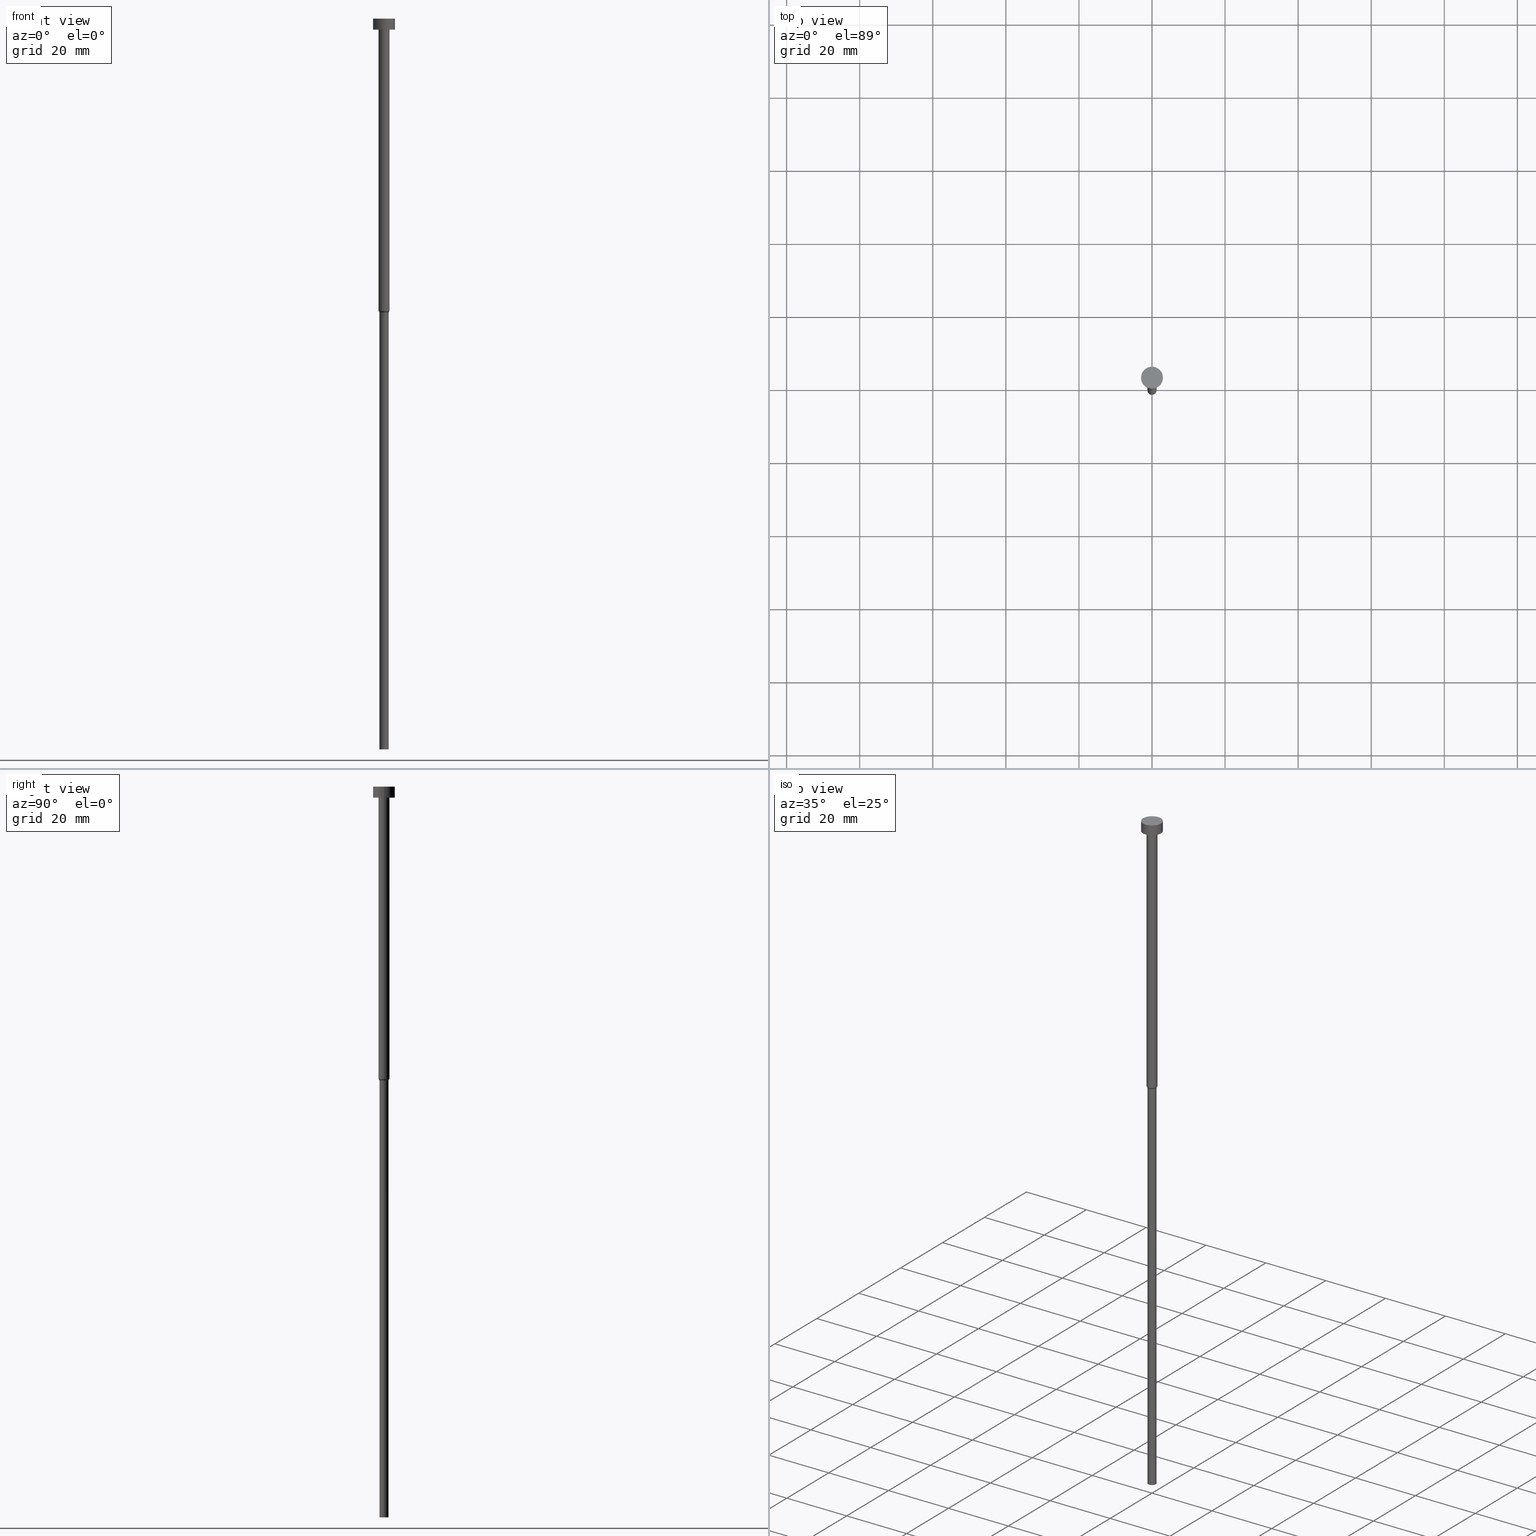
[diagram: canonical four-view strip — front | top / right | iso, engineering-drawing reading convention]
A machine part, canonical four-view strip (front | top / right | iso — engineering-drawing reading convention). The complete STEP part file that produces these views, byte-faithful:
ISO-10303-21;
HEADER;
FILE_DESCRIPTION (( 'STEP AP203' ),
    '1' );
FILE_NAME ('53ff.STEP',
    '2023-02-13T09:02:29',
    ( '' ),
    ( '' ),
    'SwSTEP 2.0',
    'SolidWorks 2019',
    '' );
FILE_SCHEMA (( 'CONFIG_CONTROL_DESIGN' ));
ENDSEC;

DATA;
#1 = CARTESIAN_POINT ( 'NONE',  ( 1.500000000000000000, 0.000000000000000000, -3.000000000000000888 ) ) ;
#2 = APPROVAL_STATUS ( 'not_yet_approved' ) ;
#3 = CARTESIAN_POINT ( 'NONE',  ( 0.000000000000000000, 0.000000000000000000, -80.00000000000000000 ) ) ;
#4 = DIRECTION ( 'NONE',  ( 1.000000000000000000, 0.000000000000000000, 0.000000000000000000 ) ) ;
#5 = APPLICATION_PROTOCOL_DEFINITION ( 'international standard', 'config_control_design', 1994, #165 ) ;
#6 = CYLINDRICAL_SURFACE ( 'NONE', #319, 3.000000000000000000 ) ;
#7 = EDGE_CURVE ( 'NONE', #173, #255, #65, .T. ) ;
#8 = CIRCLE ( 'NONE', #336, 1.500000000000000000 ) ;
#9 = ORIENTED_EDGE ( 'NONE', *, *, #151, .F. ) ;
#10 = ADVANCED_FACE ( 'NONE', ( #184 ), #182, .T. ) ;
#11 = DIRECTION ( 'NONE',  ( -1.000000000000000000, 0.000000000000000000, -0.000000000000000000 ) ) ;
#12 = DIRECTION ( 'NONE',  ( -0.000000000000000000, -0.000000000000000000, 1.000000000000000000 ) ) ;
#13 = AXIS2_PLACEMENT_3D ( 'NONE', #164, #329, #224 ) ;
#14 = DIRECTION ( 'NONE',  ( -0.4999999999999981681, 6.123233995736742617E-17, 0.8660254037844395958 ) ) ;
#15 = DIRECTION ( 'NONE',  ( 0.4999999999999981681, 0.000000000000000000, 0.8660254037844395958 ) ) ;
#16 = EDGE_CURVE ( 'NONE', #157, #173, #83, .T. ) ;
#17 = ORIENTED_EDGE ( 'NONE', *, *, #16, .F. ) ;
#18 = AXIS2_PLACEMENT_3D ( 'NONE', #220, #323, #106 ) ;
#19 = CARTESIAN_POINT ( 'NONE',  ( -1.500000000000000000, 1.836970198721029934E-16, -80.00000000000000000 ) ) ;
#20 = CARTESIAN_POINT ( 'NONE',  ( -1.250000000000000000, 1.530808498934191571E-16, -80.43301270189222407 ) ) ;
#21 = PERSON_AND_ORGANIZATION ( #177, #196 ) ;
#22 = CARTESIAN_POINT ( 'NONE',  ( 0.000000000000000000, 0.000000000000000000, -200.0000000000000000 ) ) ;
#23 = DATE_AND_TIME ( #193, #214 ) ;
#24 = AXIS2_PLACEMENT_3D ( 'NONE', #332, #201, #32 ) ;
#25 = DIRECTION ( 'NONE',  ( -0.000000000000000000, -0.000000000000000000, 1.000000000000000000 ) ) ;
#26 = COORDINATED_UNIVERSAL_TIME_OFFSET ( 1, 0, .AHEAD. ) ;
#27 = CONICAL_SURFACE ( 'NONE', #158, 1.500000000000000000, 0.5235987755982968173 ) ;
#28 = FACE_OUTER_BOUND ( 'NONE', #72, .T. ) ;
#29 = DESIGN_CONTEXT ( 'detailed design', #80, 'design' ) ;
#30 = EDGE_CURVE ( 'NONE', #61, #312, #289, .T. ) ;
#31 = DIRECTION ( 'NONE',  ( -1.000000000000000000, 0.000000000000000000, -0.000000000000000000 ) ) ;
#32 = DIRECTION ( 'NONE',  ( 1.000000000000000000, 0.000000000000000000, 0.000000000000000000 ) ) ;
#33 = ORIENTED_EDGE ( 'NONE', *, *, #347, .T. ) ;
#34 = APPROVAL_STATUS ( 'not_yet_approved' ) ;
#35 = CC_DESIGN_PERSON_AND_ORGANIZATION_ASSIGNMENT ( #218, #228, ( #345 ) ) ;
#36 = DATE_AND_TIME ( #113, #341 ) ;
#37 = EDGE_LOOP ( 'NONE', ( #339, #213, #17, #115 ) ) ;
#38 = PRODUCT_RELATED_PRODUCT_CATEGORY ( 'detail', '', ( #345 ) ) ;
#39 = DIRECTION ( 'NONE',  ( -0.000000000000000000, -0.000000000000000000, 1.000000000000000000 ) ) ;
#40 = ORIENTED_EDGE ( 'NONE', *, *, #64, .F. ) ;
#41 = DIRECTION ( 'NONE',  ( 1.000000000000000000, 0.000000000000000000, 0.000000000000000000 ) ) ;
#42 = ORIENTED_EDGE ( 'NONE', *, *, #286, .F. ) ;
#43 = CARTESIAN_POINT ( 'NONE',  ( 0.000000000000000000, 0.000000000000000000, -3.000000000000000888 ) ) ;
#44 = CARTESIAN_POINT ( 'NONE',  ( 3.000000000000000000, 0.000000000000000000, 0.000000000000000000 ) ) ;
#45 = ORIENTED_EDGE ( 'NONE', *, *, #96, .T. ) ;
#46 = VECTOR ( 'NONE', #138, 1000.000000000000000 ) ;
#47 = CARTESIAN_POINT ( 'NONE',  ( 0.000000000000000000, 0.000000000000000000, -3.673940397442059868E-16 ) ) ;
#48 = CYLINDRICAL_SURFACE ( 'NONE', #302, 1.250000000000000000 ) ;
#49 = DIRECTION ( 'NONE',  ( 1.000000000000000000, 0.000000000000000000, 0.000000000000000000 ) ) ;
#50 = CARTESIAN_POINT ( 'NONE',  ( -1.250000000000000000, 1.530808498934191571E-16, 0.000000000000000000 ) ) ;
#51 = AXIS2_PLACEMENT_3D ( 'NONE', #73, #69, #100 ) ;
#52 = FACE_OUTER_BOUND ( 'NONE', #238, .T. ) ;
#53 =( NAMED_UNIT ( * ) SI_UNIT ( $, .STERADIAN. ) SOLID_ANGLE_UNIT ( ) );
#54 = CC_DESIGN_SECURITY_CLASSIFICATION ( #141, ( #265 ) ) ;
#55 = DIRECTION ( 'NONE',  ( -0.000000000000000000, -0.000000000000000000, 1.000000000000000000 ) ) ;
#56 = PERSON_AND_ORGANIZATION_ROLE ( 'creator' ) ;
#57 = DIRECTION ( 'NONE',  ( 1.000000000000000000, 0.000000000000000000, 0.000000000000000000 ) ) ;
#58 = ORIENTED_EDGE ( 'NONE', *, *, #96, .F. ) ;
#59 = EDGE_CURVE ( 'NONE', #147, #236, #66, .T. ) ;
#60 = VERTEX_POINT ( 'NONE', #150 ) ;
#61 = VERTEX_POINT ( 'NONE', #128 ) ;
#62 = VERTEX_POINT ( 'NONE', #314 ) ;
#63 = AXIS2_PLACEMENT_3D ( 'NONE', #301, #252, #4 ) ;
#64 = EDGE_CURVE ( 'NONE', #255, #62, #260, .T. ) ;
#65 = LINE ( 'NONE', #19, #257 ) ;
#66 = LINE ( 'NONE', #44, #70 ) ;
#67 = CC_DESIGN_DATE_AND_TIME_ASSIGNMENT ( #36, #281, ( #141 ) ) ;
#68 = ORIENTED_EDGE ( 'NONE', *, *, #30, .T. ) ;
#69 = DIRECTION ( 'NONE',  ( -0.000000000000000000, -0.000000000000000000, 1.000000000000000000 ) ) ;
#70 = VECTOR ( 'NONE', #240, 1000.000000000000000 ) ;
#71 = LINE ( 'NONE', #285, #116 ) ;
#72 = EDGE_LOOP ( 'NONE', ( #258, #320, #149, #58 ) ) ;
#73 = CARTESIAN_POINT ( 'NONE',  ( 0.000000000000000000, 0.000000000000000000, -3.673940397442059868E-16 ) ) ;
#74 = CARTESIAN_POINT ( 'NONE',  ( 0.000000000000000000, 0.000000000000000000, -3.000000000000000888 ) ) ;
#75 = DIRECTION ( 'NONE',  ( -0.000000000000000000, -0.000000000000000000, 1.000000000000000000 ) ) ;
#76 = APPROVAL_ROLE ( '' ) ;
#77 = FACE_OUTER_BOUND ( 'NONE', #37, .T. ) ;
#78 = CALENDAR_DATE ( 2023, 13, 2 ) ;
#79 = DIRECTION ( 'NONE',  ( 0.000000000000000000, -0.000000000000000000, 1.000000000000000000 ) ) ;
#80 = APPLICATION_CONTEXT ( 'configuration controlled 3d designs of mechanical parts and assemblies' ) ;
#81 = APPROVAL_PERSON_ORGANIZATION ( #199, #162, #304 ) ;
#82 = DIRECTION ( 'NONE',  ( -0.000000000000000000, -0.000000000000000000, 1.000000000000000000 ) ) ;
#83 = CIRCLE ( 'NONE', #245, 1.250000000000000000 ) ;
#84 = CARTESIAN_POINT ( 'NONE',  ( -1.250000000000000000, 1.530808498934191571E-16, -200.0000000000000000 ) ) ;
#85 = EDGE_LOOP ( 'NONE', ( #235, #68, #186, #311 ) ) ;
#86 = EDGE_CURVE ( 'NONE', #255, #60, #307, .T. ) ;
#87 = VECTOR ( 'NONE', #82, 1000.000000000000000 ) ;
#88 = SECURITY_CLASSIFICATION_LEVEL ( 'unclassified' ) ;
#89 = COORDINATED_UNIVERSAL_TIME_OFFSET ( 1, 0, .AHEAD. ) ;
#90 = ORIENTED_EDGE ( 'NONE', *, *, #282, .F. ) ;
#91 = COORDINATED_UNIVERSAL_TIME_OFFSET ( 1, 0, .AHEAD. ) ;
#92 = APPROVAL ( #249, 'NEUR�EN�' ) ;
#93 = EDGE_LOOP ( 'NONE', ( #9, #178, #33, #340 ) ) ;
#94 = AXIS2_PLACEMENT_3D ( 'NONE', #105, #130, #49 ) ;
#95 = EDGE_LOOP ( 'NONE', ( #279, #119, #231, #42 ) ) ;
#96 = EDGE_CURVE ( 'NONE', #157, #60, #71, .T. ) ;
#97 = FACE_OUTER_BOUND ( 'NONE', #204, .T. ) ;
#98 = CARTESIAN_POINT ( 'NONE',  ( 1.250000000000000000, 0.000000000000000000, 0.000000000000000000 ) ) ;
#99 = CARTESIAN_POINT ( 'NONE',  ( 0.000000000000000000, -3.000000000000000000, -3.000000000000000888 ) ) ;
#100 = DIRECTION ( 'NONE',  ( 1.000000000000000000, 0.000000000000000000, 0.000000000000000000 ) ) ;
#101 = CLOSED_SHELL ( 'NONE', ( #232, #259, #272, #208, #143, #200, #237, #10, #127, #321, #241 ) ) ;
#102 = ORIENTED_EDGE ( 'NONE', *, *, #86, .T. ) ;
#103 = CARTESIAN_POINT ( 'NONE',  ( 3.000000000000000000, 0.000000000000000000, -3.000000000000000888 ) ) ;
#104 = CC_DESIGN_PERSON_AND_ORGANIZATION_ASSIGNMENT ( #175, #278, ( #141 ) ) ;
#105 = CARTESIAN_POINT ( 'NONE',  ( 0.000000000000000000, 0.000000000000000000, 0.000000000000000000 ) ) ;
#106 = DIRECTION ( 'NONE',  ( 1.000000000000000000, 0.000000000000000000, 0.000000000000000000 ) ) ;
#107 = PERSON_AND_ORGANIZATION ( #177, #196 ) ;
#108 = DIRECTION ( 'NONE',  ( -0.000000000000000000, -0.000000000000000000, 1.000000000000000000 ) ) ;
#109 = UNCERTAINTY_MEASURE_WITH_UNIT (LENGTH_MEASURE( 1.000000000000000082E-05 ), #293, 'distance_accuracy_value', 'NONE');
#110 = LINE ( 'NONE', #226, #87 ) ;
#111 = DIRECTION ( 'NONE',  ( -0.000000000000000000, -0.000000000000000000, 1.000000000000000000 ) ) ;
#112 = AXIS2_PLACEMENT_3D ( 'NONE', #99, #155, #11 ) ;
#113 = CALENDAR_DATE ( 2023, 13, 2 ) ;
#114 = APPROVAL_DATE_TIME ( #202, #262 ) ;
#115 = ORIENTED_EDGE ( 'NONE', *, *, #347, .F. ) ;
#116 = VECTOR ( 'NONE', #15, 1000.000000000000114 ) ;
#117 = APPROVAL_PERSON_ORGANIZATION ( #137, #92, #76 ) ;
#118 = CC_DESIGN_PERSON_AND_ORGANIZATION_ASSIGNMENT ( #251, #256, ( #265 ) ) ;
#119 = ORIENTED_EDGE ( 'NONE', *, *, #64, .T. ) ;
#120 = ORIENTED_EDGE ( 'NONE', *, *, #286, .T. ) ;
#121 = CC_DESIGN_PERSON_AND_ORGANIZATION_ASSIGNMENT ( #21, #56, ( #171 ) ) ;
#122 = AXIS2_PLACEMENT_3D ( 'NONE', #273, #79, #132 ) ;
#123 = DIRECTION ( 'NONE',  ( 1.000000000000000000, 0.000000000000000000, 0.000000000000000000 ) ) ;
#124 = FACE_BOUND ( 'NONE', #306, .T. ) ;
#125 = CARTESIAN_POINT ( 'NONE',  ( 0.000000000000000000, 0.000000000000000000, 0.000000000000000000 ) ) ;
#126 = LOCAL_TIME ( 10, 2, 29.00000000000000000, #26 ) ;
#127 = ADVANCED_FACE ( 'NONE', ( #124, #97 ), #346, .T. ) ;
#128 = CARTESIAN_POINT ( 'NONE',  ( -3.000000000000000000, 3.673940397442059868E-16, -3.000000000000000888 ) ) ;
#129 = FACE_OUTER_BOUND ( 'NONE', #85, .T. ) ;
#130 = DIRECTION ( 'NONE',  ( 0.000000000000000000, 0.000000000000000000, 1.000000000000000000 ) ) ;
#131 = MANIFOLD_SOLID_BREP ( 'Rotovat1', #101 ) ;
#132 = DIRECTION ( 'NONE',  ( 1.000000000000000000, 0.000000000000000000, 0.000000000000000000 ) ) ;
#133 = APPROVAL_DATE_TIME ( #23, #92 ) ;
#134 = VECTOR ( 'NONE', #39, 1000.000000000000000 ) ;
#135 = AXIS2_PLACEMENT_3D ( 'NONE', #125, #291, #123 ) ;
#136 = DIRECTION ( 'NONE',  ( -0.000000000000000000, -0.000000000000000000, 1.000000000000000000 ) ) ;
#137 = PERSON_AND_ORGANIZATION ( #177, #196 ) ;
#138 = DIRECTION ( 'NONE',  ( -0.000000000000000000, -0.000000000000000000, 1.000000000000000000 ) ) ;
#139 = FACE_OUTER_BOUND ( 'NONE', #95, .T. ) ;
#140 = CALENDAR_DATE ( 2023, 13, 2 ) ;
#141 = SECURITY_CLASSIFICATION ( '', '', #88 ) ;
#142 = FACE_OUTER_BOUND ( 'NONE', #209, .T. ) ;
#143 = ADVANCED_FACE ( 'NONE', ( #264 ), #349, .T. ) ;
#144 = CIRCLE ( 'NONE', #325, 1.500000000000000000 ) ;
#145 = ORIENTED_EDGE ( 'NONE', *, *, #7, .F. ) ;
#146 = ORIENTED_EDGE ( 'NONE', *, *, #221, .T. ) ;
#147 = VERTEX_POINT ( 'NONE', #103 ) ;
#148 =( GEOMETRIC_REPRESENTATION_CONTEXT ( 3 ) GLOBAL_UNCERTAINTY_ASSIGNED_CONTEXT ( ( #109 ) ) GLOBAL_UNIT_ASSIGNED_CONTEXT ( ( #293, #160, #53 ) ) REPRESENTATION_CONTEXT ( 'NONE', 'WORKASPACE' ) );
#149 = ORIENTED_EDGE ( 'NONE', *, *, #337, .F. ) ;
#150 = CARTESIAN_POINT ( 'NONE',  ( 1.500000000000000000, 0.000000000000000000, -80.00000000000000000 ) ) ;
#151 = EDGE_CURVE ( 'NONE', #316, #173, #248, .T. ) ;
#152 = ORIENTED_EDGE ( 'NONE', *, *, #355, .T. ) ;
#153 = DIRECTION ( 'NONE',  ( -0.000000000000000000, -0.000000000000000000, 1.000000000000000000 ) ) ;
#154 = ORIENTED_EDGE ( 'NONE', *, *, #294, .F. ) ;
#155 = DIRECTION ( 'NONE',  ( 0.000000000000000000, 0.000000000000000000, -1.000000000000000000 ) ) ;
#156 = EDGE_CURVE ( 'NONE', #263, #316, #180, .T. ) ;
#157 = VERTEX_POINT ( 'NONE', #161 ) ;
#158 = AXIS2_PLACEMENT_3D ( 'NONE', #3, #108, #328 ) ;
#159 = CARTESIAN_POINT ( 'NONE',  ( 3.000000000000000000, 0.000000000000000000, -3.673940397442059868E-16 ) ) ;
#160 =( NAMED_UNIT ( * ) PLANE_ANGLE_UNIT ( ) SI_UNIT ( $, .RADIAN. ) );
#161 = CARTESIAN_POINT ( 'NONE',  ( 1.250000000000000000, 0.000000000000000000, -80.43301270189222407 ) ) ;
#162 = APPROVAL ( #2, 'NEUR�EN�' ) ;
#163 = COORDINATED_UNIVERSAL_TIME_OFFSET ( 1, 0, .AHEAD. ) ;
#164 = CARTESIAN_POINT ( 'NONE',  ( 0.000000000000000000, 0.000000000000000000, -80.00000000000000000 ) ) ;
#165 = APPLICATION_CONTEXT ( 'configuration controlled 3d designs of mechanical parts and assemblies' ) ;
#166 = CIRCLE ( 'NONE', #233, 3.000000000000000000 ) ;
#167 = AXIS2_PLACEMENT_3D ( 'NONE', #239, #342, #31 ) ;
#168 = CIRCLE ( 'NONE', #63, 3.000000000000000000 ) ;
#169 = CYLINDRICAL_SURFACE ( 'NONE', #18, 1.250000000000000000 ) ;
#170 = DIRECTION ( 'NONE',  ( 1.000000000000000000, 0.000000000000000000, 0.000000000000000000 ) ) ;
#171 = PRODUCT_DEFINITION ( 'NEZN�M�', '', #265, #29 ) ;
#172 = CARTESIAN_POINT ( 'NONE',  ( -3.000000000000000000, 3.673940397442059868E-16, -3.673940397442059868E-16 ) ) ;
#173 = VERTEX_POINT ( 'NONE', #20 ) ;
#174 = CONICAL_SURFACE ( 'NONE', #13, 1.500000000000000000, 0.5235987755982968173 ) ;
#175 = PERSON_AND_ORGANIZATION ( #177, #196 ) ;
#176 = ORIENTED_EDGE ( 'NONE', *, *, #227, .T. ) ;
#177 = PERSON ( 'NEUR�EN�', 'NEUR�EN�', 'NEUR�EN�', ('NEUR�EN�'), ('NEUR�EN�'), ('NEUR�EN�') ) ;
#178 = ORIENTED_EDGE ( 'NONE', *, *, #294, .T. ) ;
#179 = ORIENTED_EDGE ( 'NONE', *, *, #268, .F. ) ;
#180 = CIRCLE ( 'NONE', #197, 1.250000000000000000 ) ;
#181 = CARTESIAN_POINT ( 'NONE',  ( 0.000000000000000000, 0.000000000000000000, -80.00000000000000000 ) ) ;
#182 = CYLINDRICAL_SURFACE ( 'NONE', #135, 1.500000000000000000 ) ;
#183 = AXIS2_PLACEMENT_3D ( 'NONE', #198, #305, #57 ) ;
#184 = FACE_OUTER_BOUND ( 'NONE', #205, .T. ) ;
#185 = LOCAL_TIME ( 10, 2, 29.00000000000000000, #89 ) ;
#186 = ORIENTED_EDGE ( 'NONE', *, *, #355, .F. ) ;
#187 = EDGE_LOOP ( 'NONE', ( #315, #154 ) ) ;
#188 = DIRECTION ( 'NONE',  ( 1.000000000000000000, 0.000000000000000000, 0.000000000000000000 ) ) ;
#189 = CALENDAR_DATE ( 2023, 13, 2 ) ;
#190 = APPROVAL_PERSON_ORGANIZATION ( #284, #262, #254 ) ;
#191 = ADVANCED_BREP_SHAPE_REPRESENTATION ( '53ff', ( #131, #94 ), #148 ) ;
#192 = DIRECTION ( 'NONE',  ( -0.000000000000000000, -0.000000000000000000, 1.000000000000000000 ) ) ;
#193 = CALENDAR_DATE ( 2023, 13, 2 ) ;
#194 = CARTESIAN_POINT ( 'NONE',  ( 1.250000000000000000, 0.000000000000000000, -200.0000000000000000 ) ) ;
#195 = CYLINDRICAL_SURFACE ( 'NONE', #288, 1.500000000000000000 ) ;
#196 = ORGANIZATION ( 'NEUR�EN�', 'NEUR�EN�', '' ) ;
#197 = AXIS2_PLACEMENT_3D ( 'NONE', #22, #217, #322 ) ;
#198 = CARTESIAN_POINT ( 'NONE',  ( 0.000000000000000000, 0.000000000000000000, -200.0000000000000000 ) ) ;
#199 = PERSON_AND_ORGANIZATION ( #177, #196 ) ;
#200 = ADVANCED_FACE ( 'NONE', ( #270 ), #48, .T. ) ;
#201 = DIRECTION ( 'NONE',  ( -0.000000000000000000, -0.000000000000000000, 1.000000000000000000 ) ) ;
#202 = DATE_AND_TIME ( #140, #185 ) ;
#203 = AXIS2_PLACEMENT_3D ( 'NONE', #300, #136, #250 ) ;
#204 = EDGE_LOOP ( 'NONE', ( #90, #338 ) ) ;
#205 = EDGE_LOOP ( 'NONE', ( #40, #102, #120, #179 ) ) ;
#206 = CIRCLE ( 'NONE', #24, 1.250000000000000000 ) ;
#207 = ORIENTED_EDGE ( 'NONE', *, *, #86, .F. ) ;
#208 = ADVANCED_FACE ( 'NONE', ( #77 ), #169, .T. ) ;
#209 = EDGE_LOOP ( 'NONE', ( #280, #334, #261, #215 ) ) ;
#210 = DIRECTION ( 'NONE',  ( 1.000000000000000000, 0.000000000000000000, 0.000000000000000000 ) ) ;
#211 = CARTESIAN_POINT ( 'NONE',  ( -3.000000000000000000, 3.673940397442059868E-16, 0.000000000000000000 ) ) ;
#212 = CIRCLE ( 'NONE', #51, 3.000000000000000000 ) ;
#213 = ORIENTED_EDGE ( 'NONE', *, *, #151, .T. ) ;
#214 = LOCAL_TIME ( 10, 2, 29.00000000000000000, #299 ) ;
#215 = ORIENTED_EDGE ( 'NONE', *, *, #227, .F. ) ;
#216 = CARTESIAN_POINT ( 'NONE',  ( 0.000000000000000000, 0.000000000000000000, -80.00000000000000000 ) ) ;
#217 = DIRECTION ( 'NONE',  ( -0.000000000000000000, -0.000000000000000000, 1.000000000000000000 ) ) ;
#218 = PERSON_AND_ORGANIZATION ( #177, #196 ) ;
#219 = PRODUCT_DEFINITION_SHAPE ( 'NONE', 'NONE',  #171 ) ;
#220 = CARTESIAN_POINT ( 'NONE',  ( 0.000000000000000000, 0.000000000000000000, 0.000000000000000000 ) ) ;
#221 = EDGE_CURVE ( 'NONE', #242, #62, #144, .T. ) ;
#222 = CARTESIAN_POINT ( 'NONE',  ( -1.500000000000000000, 1.836970198721029934E-16, -80.00000000000000000 ) ) ;
#223 = PERSON_AND_ORGANIZATION_ROLE ( 'creator' ) ;
#224 = DIRECTION ( 'NONE',  ( 1.000000000000000000, 0.000000000000000000, 0.000000000000000000 ) ) ;
#225 = DATE_AND_TIME ( #189, #283 ) ;
#226 = CARTESIAN_POINT ( 'NONE',  ( 1.500000000000000000, 0.000000000000000000, 0.000000000000000000 ) ) ;
#227 = EDGE_CURVE ( 'NONE', #312, #236, #348, .T. ) ;
#228 = PERSON_AND_ORGANIZATION_ROLE ( 'design_owner' ) ;
#229 = AXIS2_PLACEMENT_3D ( 'NONE', #47, #192, #170 ) ;
#230 = DIRECTION ( 'NONE',  ( 1.000000000000000000, 0.000000000000000000, 0.000000000000000000 ) ) ;
#231 = ORIENTED_EDGE ( 'NONE', *, *, #221, .F. ) ;
#232 = ADVANCED_FACE ( 'NONE', ( #129 ), #303, .T. ) ;
#233 = AXIS2_PLACEMENT_3D ( 'NONE', #43, #12, #210 ) ;
#234 = CC_DESIGN_APPROVAL ( #262, ( #141 ) ) ;
#235 = ORIENTED_EDGE ( 'NONE', *, *, #282, .T. ) ;
#236 = VERTEX_POINT ( 'NONE', #159 ) ;
#237 = ADVANCED_FACE ( 'NONE', ( #247 ), #174, .T. ) ;
#238 = EDGE_LOOP ( 'NONE', ( #152, #176 ) ) ;
#239 = CARTESIAN_POINT ( 'NONE',  ( 0.000000000000000000, 0.000000000000000000, -200.0000000000000000 ) ) ;
#240 = DIRECTION ( 'NONE',  ( -0.000000000000000000, -0.000000000000000000, 1.000000000000000000 ) ) ;
#241 = ADVANCED_FACE ( 'NONE', ( #52 ), #298, .T. ) ;
#242 = VERTEX_POINT ( 'NONE', #1 ) ;
#243 = CIRCLE ( 'NONE', #183, 1.250000000000000000 ) ;
#244 = DIRECTION ( 'NONE',  ( -0.000000000000000000, -0.000000000000000000, 1.000000000000000000 ) ) ;
#245 = AXIS2_PLACEMENT_3D ( 'NONE', #266, #244, #318 ) ;
#246 = CARTESIAN_POINT ( 'NONE',  ( -1.500000000000000000, 1.836970198721029934E-16, 0.000000000000000000 ) ) ;
#247 = FACE_OUTER_BOUND ( 'NONE', #292, .T. ) ;
#248 = LINE ( 'NONE', #50, #46 ) ;
#249 = APPROVAL_STATUS ( 'not_yet_approved' ) ;
#250 = DIRECTION ( 'NONE',  ( 1.000000000000000000, 0.000000000000000000, 0.000000000000000000 ) ) ;
#251 = PERSON_AND_ORGANIZATION ( #177, #196 ) ;
#252 = DIRECTION ( 'NONE',  ( -0.000000000000000000, -0.000000000000000000, 1.000000000000000000 ) ) ;
#253 = DIRECTION ( 'NONE',  ( 1.000000000000000000, 0.000000000000000000, 0.000000000000000000 ) ) ;
#254 = APPROVAL_ROLE ( '' ) ;
#255 = VERTEX_POINT ( 'NONE', #222 ) ;
#256 = PERSON_AND_ORGANIZATION_ROLE ( 'design_supplier' ) ;
#257 = VECTOR ( 'NONE', #14, 1000.000000000000114 ) ;
#258 = ORIENTED_EDGE ( 'NONE', *, *, #16, .T. ) ;
#259 = ADVANCED_FACE ( 'NONE', ( #139 ), #195, .T. ) ;
#260 = LINE ( 'NONE', #246, #290 ) ;
#261 = ORIENTED_EDGE ( 'NONE', *, *, #59, .T. ) ;
#262 = APPROVAL ( #34, 'NEUR�EN�' ) ;
#263 = VERTEX_POINT ( 'NONE', #194 ) ;
#264 = FACE_OUTER_BOUND ( 'NONE', #187, .T. ) ;
#265 = PRODUCT_DEFINITION_FORMATION_WITH_SPECIFIED_SOURCE ( 'LIBOVOLN�', '', #345, .NOT_KNOWN. ) ;
#266 = CARTESIAN_POINT ( 'NONE',  ( 0.000000000000000000, 0.000000000000000000, -80.43301270189222407 ) ) ;
#267 = AXIS2_PLACEMENT_3D ( 'NONE', #274, #75, #253 ) ;
#268 = EDGE_CURVE ( 'NONE', #62, #242, #317, .T. ) ;
#269 = CARTESIAN_POINT ( 'NONE',  ( 0.000000000000000000, 0.000000000000000000, 0.000000000000000000 ) ) ;
#270 = FACE_OUTER_BOUND ( 'NONE', #93, .T. ) ;
#271 = CARTESIAN_POINT ( 'NONE',  ( 0.000000000000000000, 0.000000000000000000, 0.000000000000000000 ) ) ;
#272 = ADVANCED_FACE ( 'NONE', ( #28 ), #27, .T. ) ;
#273 = CARTESIAN_POINT ( 'NONE',  ( 0.000000000000000000, 0.000000000000000000, -1.836970198721029934E-16 ) ) ;
#274 = CARTESIAN_POINT ( 'NONE',  ( 0.000000000000000000, 0.000000000000000000, 0.000000000000000000 ) ) ;
#275 = APPLICATION_PROTOCOL_DEFINITION ( 'international standard', 'config_control_design', 1994, #80 ) ;
#276 = CARTESIAN_POINT ( 'NONE',  ( 0.000000000000000000, 0.000000000000000000, 0.000000000000000000 ) ) ;
#277 = CC_DESIGN_PERSON_AND_ORGANIZATION_ASSIGNMENT ( #107, #223, ( #265 ) ) ;
#278 = PERSON_AND_ORGANIZATION_ROLE ( 'classification_officer' ) ;
#279 = ORIENTED_EDGE ( 'NONE', *, *, #337, .T. ) ;
#280 = ORIENTED_EDGE ( 'NONE', *, *, #30, .F. ) ;
#281 = DATE_TIME_ROLE ( 'classification_date' ) ;
#282 = EDGE_CURVE ( 'NONE', #147, #61, #168, .T. ) ;
#283 = LOCAL_TIME ( 10, 2, 29.00000000000000000, #163 ) ;
#284 = PERSON_AND_ORGANIZATION ( #177, #196 ) ;
#285 = CARTESIAN_POINT ( 'NONE',  ( 1.500000000000000000, 0.000000000000000000, -80.00000000000000000 ) ) ;
#286 = EDGE_CURVE ( 'NONE', #60, #242, #110, .T. ) ;
#287 = DIRECTION ( 'NONE',  ( 1.000000000000000000, 0.000000000000000000, 0.000000000000000000 ) ) ;
#288 = AXIS2_PLACEMENT_3D ( 'NONE', #271, #327, #353 ) ;
#289 = LINE ( 'NONE', #211, #134 ) ;
#290 = VECTOR ( 'NONE', #343, 1000.000000000000000 ) ;
#291 = DIRECTION ( 'NONE',  ( -0.000000000000000000, -0.000000000000000000, 1.000000000000000000 ) ) ;
#292 = EDGE_LOOP ( 'NONE', ( #145, #335, #45, #207 ) ) ;
#293 =( LENGTH_UNIT ( ) NAMED_UNIT ( * ) SI_UNIT ( .MILLI., .METRE. ) );
#294 = EDGE_CURVE ( 'NONE', #316, #263, #243, .T. ) ;
#295 = VECTOR ( 'NONE', #153, 1000.000000000000000 ) ;
#296 = DIRECTION ( 'NONE',  ( 1.000000000000000000, 0.000000000000000000, 0.000000000000000000 ) ) ;
#297 = APPROVAL_DATE_TIME ( #225, #162 ) ;
#298 = PLANE ( 'NONE',  #122 ) ;
#299 = COORDINATED_UNIVERSAL_TIME_OFFSET ( 1, 0, .AHEAD. ) ;
#300 = CARTESIAN_POINT ( 'NONE',  ( 0.000000000000000000, 0.000000000000000000, -3.000000000000000888 ) ) ;
#301 = CARTESIAN_POINT ( 'NONE',  ( 0.000000000000000000, 0.000000000000000000, -3.000000000000000888 ) ) ;
#302 = AXIS2_PLACEMENT_3D ( 'NONE', #269, #25, #296 ) ;
#303 = CYLINDRICAL_SURFACE ( 'NONE', #267, 3.000000000000000000 ) ;
#304 = APPROVAL_ROLE ( '' ) ;
#305 = DIRECTION ( 'NONE',  ( -0.000000000000000000, -0.000000000000000000, 1.000000000000000000 ) ) ;
#306 = EDGE_LOOP ( 'NONE', ( #146, #308 ) ) ;
#307 = CIRCLE ( 'NONE', #331, 1.500000000000000000 ) ;
#308 = ORIENTED_EDGE ( 'NONE', *, *, #268, .T. ) ;
#309 = SHAPE_DEFINITION_REPRESENTATION ( #219, #191 ) ;
#310 = EDGE_CURVE ( 'NONE', #173, #157, #206, .T. ) ;
#311 = ORIENTED_EDGE ( 'NONE', *, *, #59, .F. ) ;
#312 = VERTEX_POINT ( 'NONE', #172 ) ;
#313 = CC_DESIGN_APPROVAL ( #92, ( #265 ) ) ;
#314 = CARTESIAN_POINT ( 'NONE',  ( -1.500000000000000000, 1.836970198721029934E-16, -3.000000000000000888 ) ) ;
#315 = ORIENTED_EDGE ( 'NONE', *, *, #156, .F. ) ;
#316 = VERTEX_POINT ( 'NONE', #84 ) ;
#317 = CIRCLE ( 'NONE', #203, 1.500000000000000000 ) ;
#318 = DIRECTION ( 'NONE',  ( 1.000000000000000000, 0.000000000000000000, 0.000000000000000000 ) ) ;
#319 = AXIS2_PLACEMENT_3D ( 'NONE', #276, #111, #230 ) ;
#320 = ORIENTED_EDGE ( 'NONE', *, *, #7, .T. ) ;
#321 = ADVANCED_FACE ( 'NONE', ( #142 ), #6, .T. ) ;
#322 = DIRECTION ( 'NONE',  ( 1.000000000000000000, 0.000000000000000000, 0.000000000000000000 ) ) ;
#323 = DIRECTION ( 'NONE',  ( -0.000000000000000000, -0.000000000000000000, 1.000000000000000000 ) ) ;
#324 = DATE_TIME_ROLE ( 'creation_date' ) ;
#325 = AXIS2_PLACEMENT_3D ( 'NONE', #74, #55, #188 ) ;
#326 = CC_DESIGN_DATE_AND_TIME_ASSIGNMENT ( #354, #324, ( #171 ) ) ;
#327 = DIRECTION ( 'NONE',  ( -0.000000000000000000, -0.000000000000000000, 1.000000000000000000 ) ) ;
#328 = DIRECTION ( 'NONE',  ( 1.000000000000000000, 0.000000000000000000, 0.000000000000000000 ) ) ;
#329 = DIRECTION ( 'NONE',  ( -0.000000000000000000, -0.000000000000000000, 1.000000000000000000 ) ) ;
#330 = CC_DESIGN_APPROVAL ( #162, ( #171 ) ) ;
#331 = AXIS2_PLACEMENT_3D ( 'NONE', #181, #351, #287 ) ;
#332 = CARTESIAN_POINT ( 'NONE',  ( 0.000000000000000000, 0.000000000000000000, -80.43301270189222407 ) ) ;
#333 = EDGE_CURVE ( 'NONE', #61, #147, #166, .T. ) ;
#334 = ORIENTED_EDGE ( 'NONE', *, *, #333, .T. ) ;
#335 = ORIENTED_EDGE ( 'NONE', *, *, #310, .T. ) ;
#336 = AXIS2_PLACEMENT_3D ( 'NONE', #216, #350, #41 ) ;
#337 = EDGE_CURVE ( 'NONE', #60, #255, #8, .T. ) ;
#338 = ORIENTED_EDGE ( 'NONE', *, *, #333, .F. ) ;
#339 = ORIENTED_EDGE ( 'NONE', *, *, #156, .T. ) ;
#340 = ORIENTED_EDGE ( 'NONE', *, *, #310, .F. ) ;
#341 = LOCAL_TIME ( 10, 2, 29.00000000000000000, #91 ) ;
#342 = DIRECTION ( 'NONE',  ( 0.000000000000000000, 0.000000000000000000, -1.000000000000000000 ) ) ;
#343 = DIRECTION ( 'NONE',  ( -0.000000000000000000, -0.000000000000000000, 1.000000000000000000 ) ) ;
#344 = LINE ( 'NONE', #98, #295 ) ;
#345 = PRODUCT ( '53ff', '53ff', '', ( #352 ) ) ;
#346 = PLANE ( 'NONE',  #112 ) ;
#347 = EDGE_CURVE ( 'NONE', #263, #157, #344, .T. ) ;
#348 = CIRCLE ( 'NONE', #229, 3.000000000000000000 ) ;
#349 = PLANE ( 'NONE',  #167 ) ;
#350 = DIRECTION ( 'NONE',  ( -0.000000000000000000, -0.000000000000000000, 1.000000000000000000 ) ) ;
#351 = DIRECTION ( 'NONE',  ( -0.000000000000000000, -0.000000000000000000, 1.000000000000000000 ) ) ;
#352 = MECHANICAL_CONTEXT ( 'NONE', #165, 'mechanical' ) ;
#353 = DIRECTION ( 'NONE',  ( 1.000000000000000000, 0.000000000000000000, 0.000000000000000000 ) ) ;
#354 = DATE_AND_TIME ( #78, #126 ) ;
#355 = EDGE_CURVE ( 'NONE', #236, #312, #212, .T. ) ;
ENDSEC;
END-ISO-10303-21;
